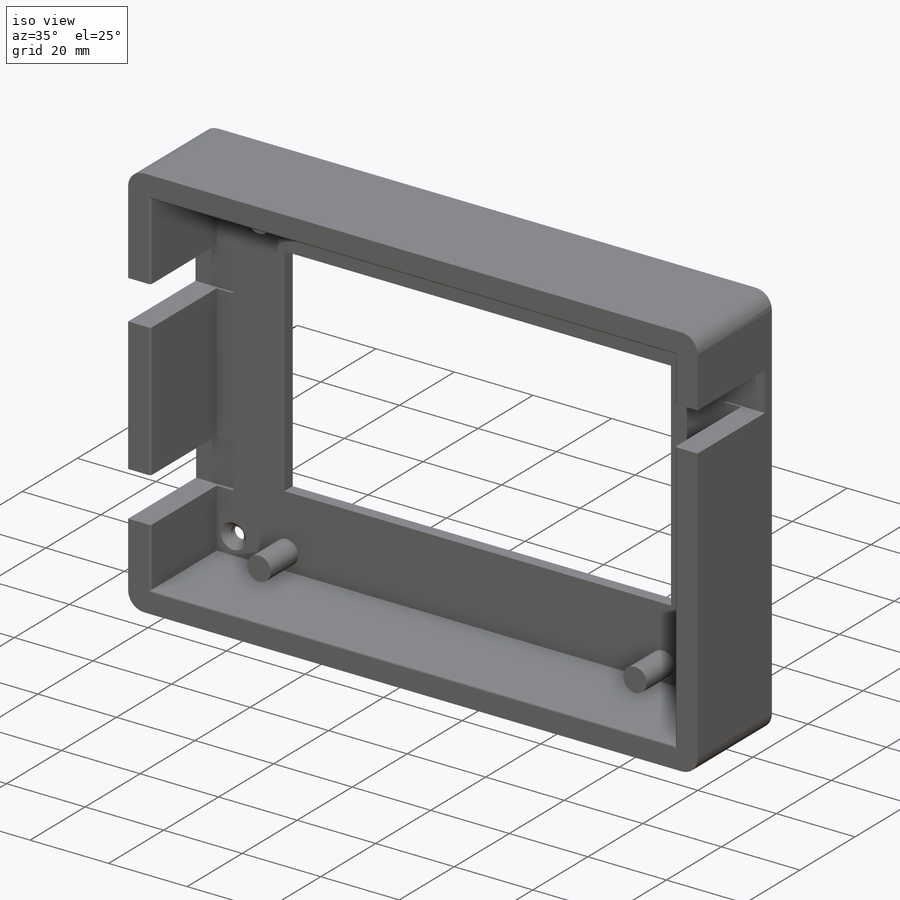
[diagram: iso view]
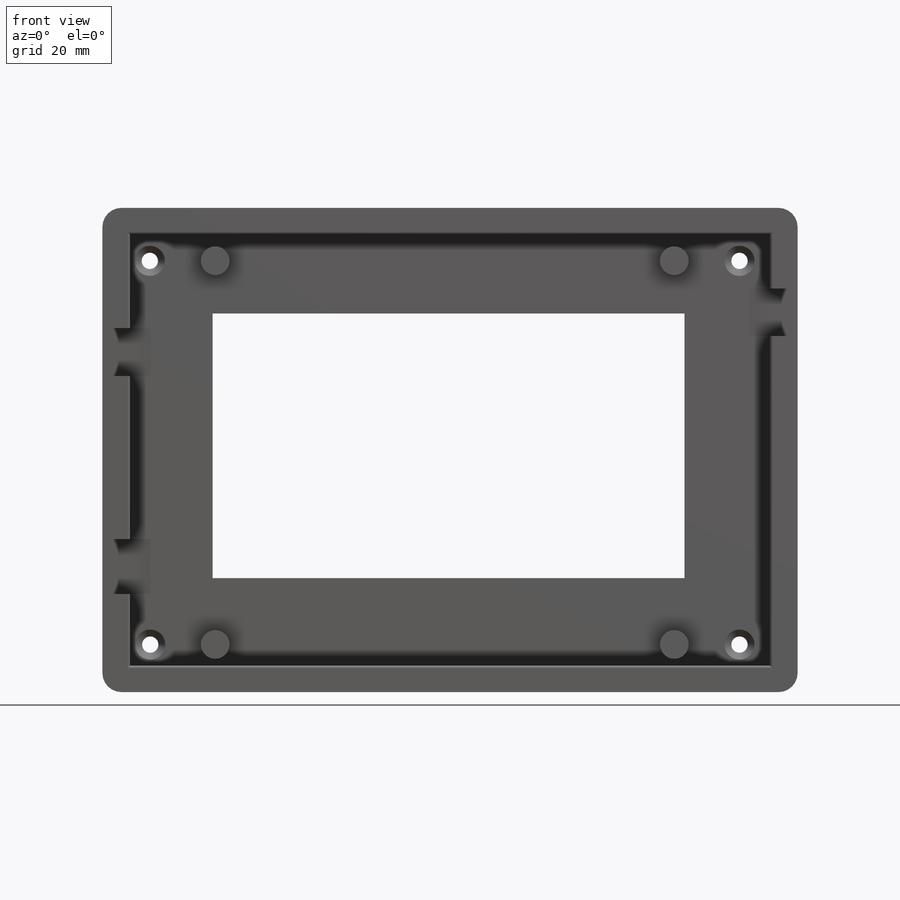
[diagram: front view]
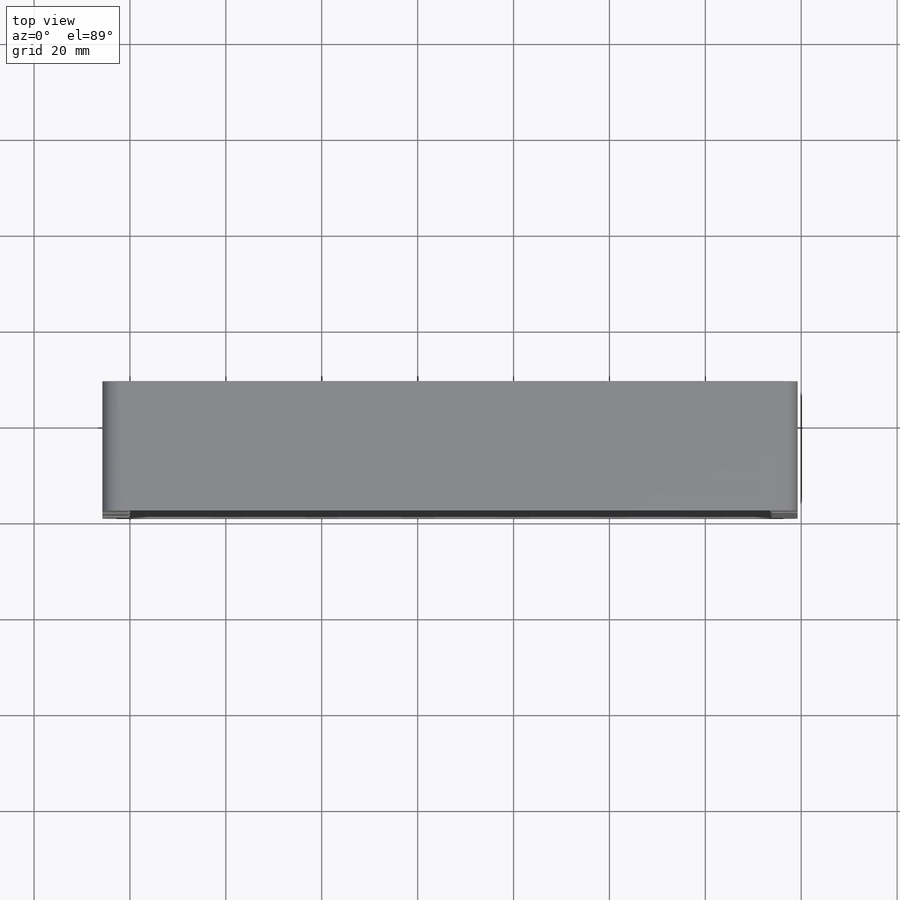
[diagram: top view]
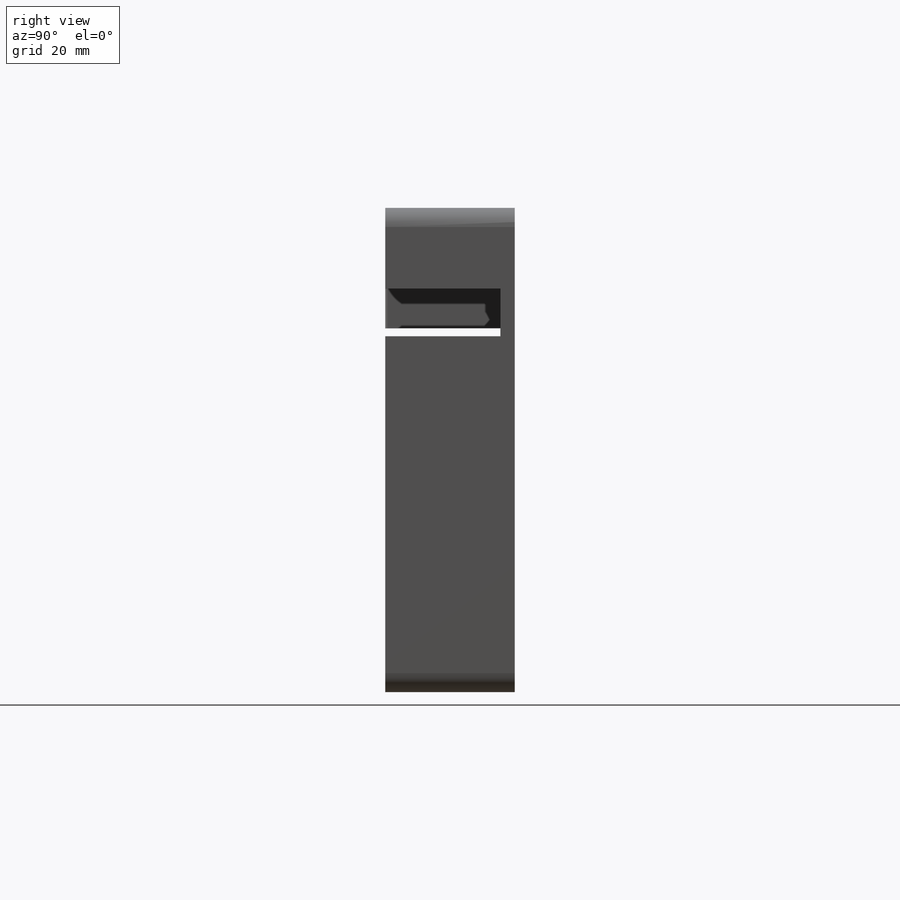
[diagram: right view]
SOLIDWORKS PART (.sldprt)
format: sldprt  version: not decoded by parser v0  size: 323,072 bytes
history: native  units: mm
features: sketch x9, cut_extrude x4, plane x3, hole x3, material x1, extrude x1, fillet x1 (+10 scaffold rows collapsed)
feature tree (32):
  scaffold x10  (default folders/planes/origin — collapsed)
  material  "Caoutchouc"
  plane  "Plan de face"
  plane  "Plan de dessus"
  plane  "Plan de droite"
  sketch  "Esquisse1"  dims[D1=133.5mm D2=90.0mm]
  sketch  "EsquisseExterieur"  dims[D3=4.0mm D1=145.0mm D2=101.0mm]
  extrude  "Boss.-Extru.1"  Depth=8mm
  cut_extrude  "Enlèv. mat.-Extru.1"  Depth=5mm
  hole  "Fraisage pour vis à tête fraisée M32"  Diameter=3.4mm Depth=5mm
  sketch  "Esquisse6"
  sketch  "Esquisse5"  dims[hole-wizard template sketch: 39 standard entries collapsed; hole parameters kept: c13.Diamètre du perçage=3.4mm c13.Profondeur du perçage=5.0mm c13.Diamètre du fraisage entrant=6.3mm c13.D4=~33.297463mm c13.Angle du fraisage entrant=90.0deg c14.D5=~14.816244mm c14.Angle de pointe=118.0deg]
  sketch  "Esquisse7"
  cut_extrude  "Enlèv. mat.-Extru.2"  Depth=10mm
  sketch  "Esquisse8"
  cut_extrude  "Enlèv. mat.-Extru.3"  Depth=10mm
  sketch  "Esquisse9"
  cut_extrude  "Enlèv. mat.-Extru.4"  Depth=10mm
  fillet  "Congé1"  Radius=0.5mm
  sketch  "Esquisse10"  dims[D1=~4.815524mm]
  hole  "Boss.-Extru.2"  Diameter=10mm
  sketch  "Esquisse12"
  hole  "Enlèv. mat.-Extru.5"  Diameter=10mm
decode coverage: 13 of 18 modeling features carry decoded parameters
note: ~ marks probable driven/reference dimensions
note: suppression state not decoded; provenance and decode notes live in map.json
